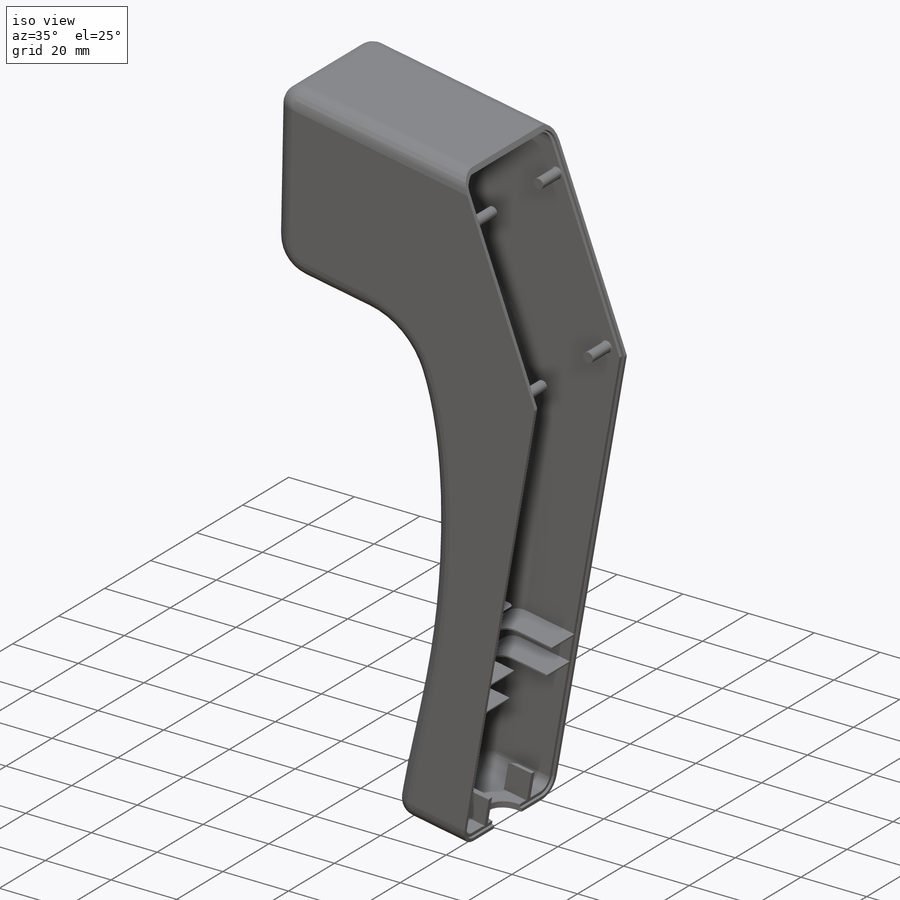
[diagram: iso view]
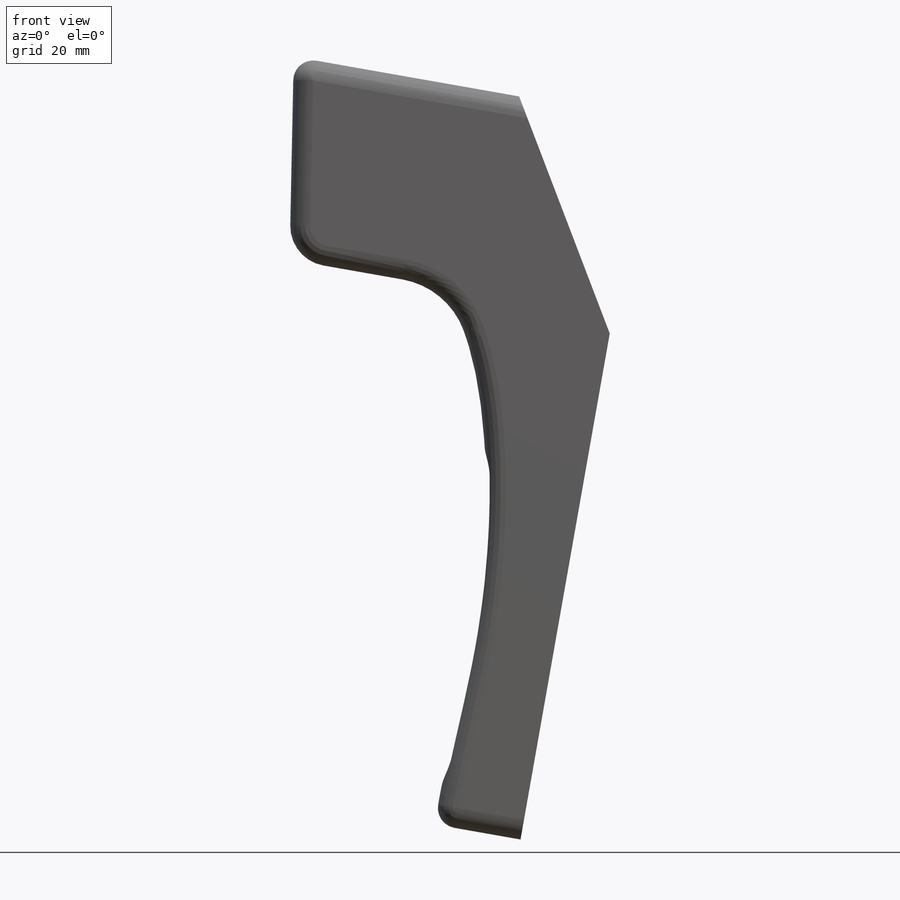
[diagram: front view]
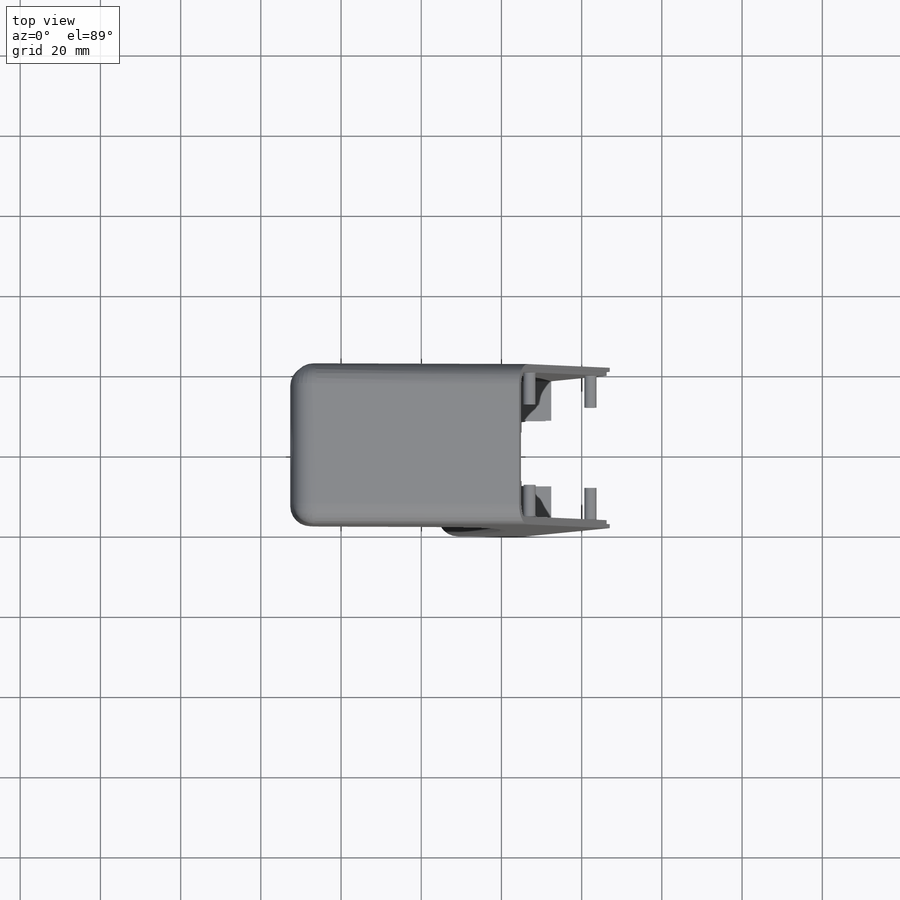
[diagram: top view]
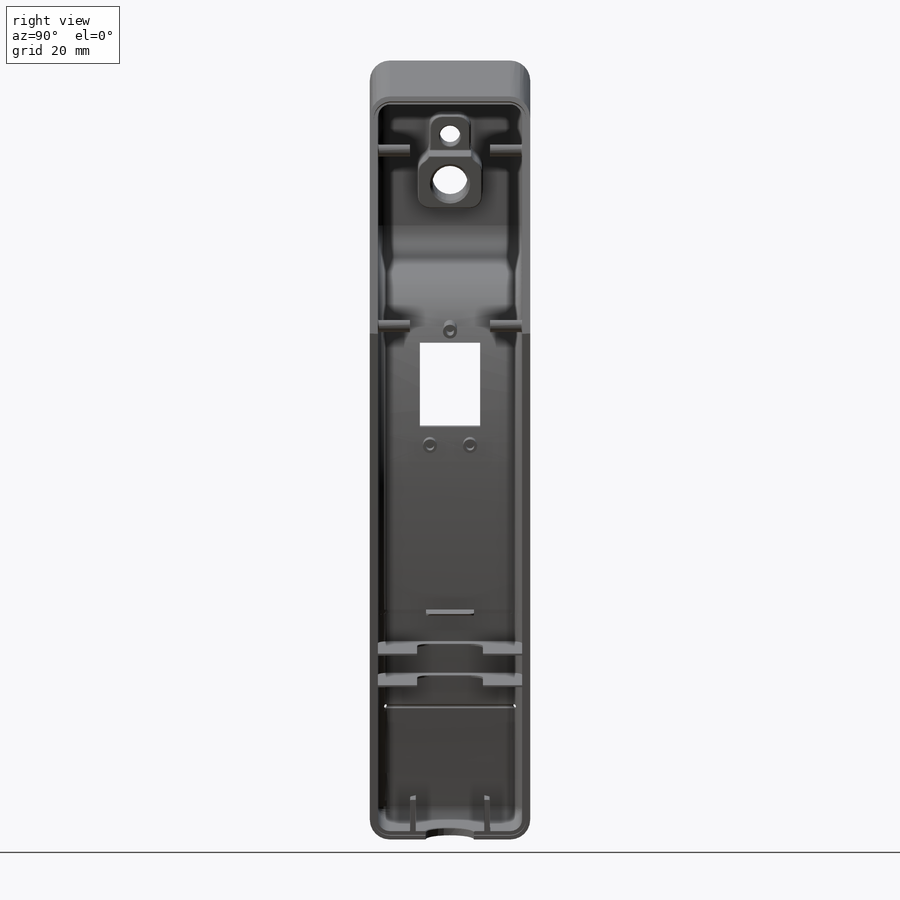
[diagram: right view]
SOLIDWORKS PART (.sldprt)
format: sldprt  version: not decoded by parser v0  size: 776,704 bytes
history: native  units: mm
features: plane x4, sketch x4, cut_extrude x4, material x1, thread x1 (+9 scaffold rows collapsed)
feature tree (23):
  scaffold x9  (default folders/planes/origin — collapsed)
  material  "PUR"
  plane  "Ebene vorne"
  plane  "Ebene oben"
  plane  "Ebene rechts"
  thread  "Bohrungsgewinde3-Basisteil-Gehäuse 2.0-1"  Diameter=8.5mm  [1 undecoded]
  sketch  "Skizze1"
  cut_extrude  "Schnitt-Linear austragen1"  Depth=50mm
  sketch  "Skizze2"  dims[D1=2.0mm D2=2.0mm]
  cut_extrude  "Schnitt-Linear austragen2"  Depth=0.5mm
  sketch  "Skizze3"  dims[D1=1.0mm]
  cut_extrude  "Nut unten"  Depth=0.75mm
  sketch  "Skizze4"  dims[D1=1.0mm]
  cut_extrude  "Nut oben"  Depth=0.75mm
  plane  "Ebene1"
decode coverage: 8 of 9 modeling features carry decoded parameters
note: 1 parameter value undecoded
note: suppression state not decoded; provenance and decode notes live in map.json
